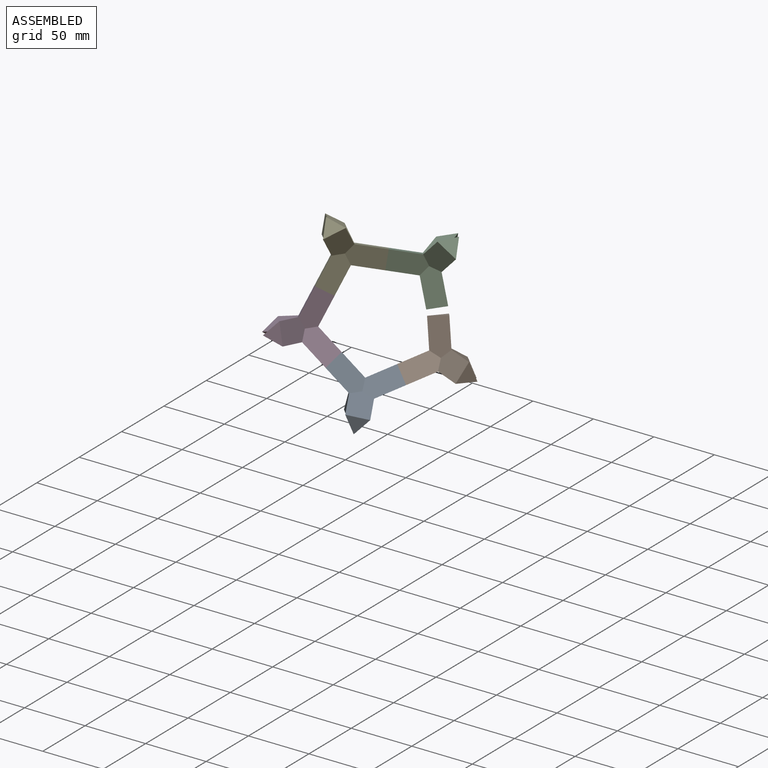
[diagram: assembled view]
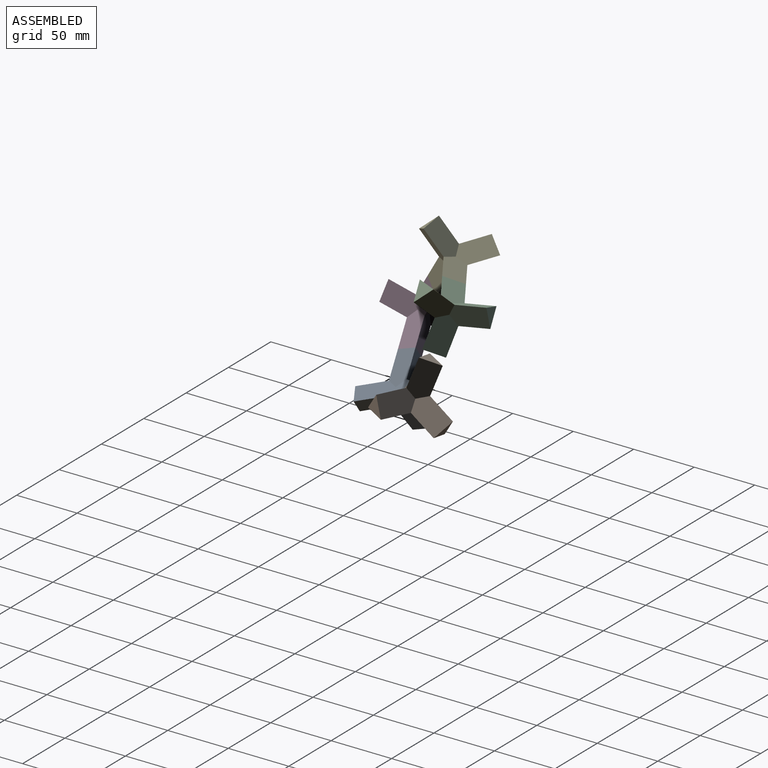
[diagram: assembled view, second angle]
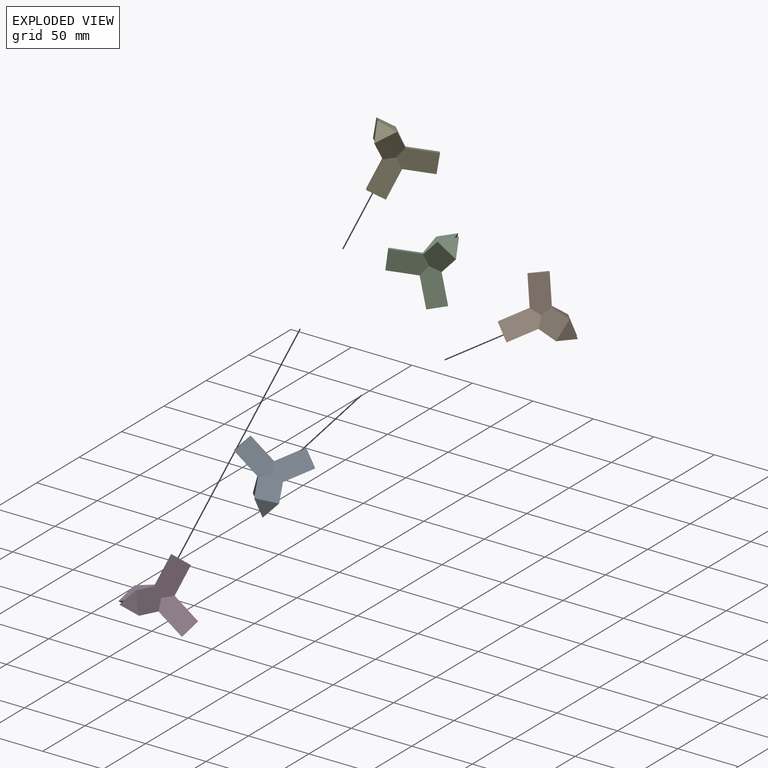
[diagram: exploded view]
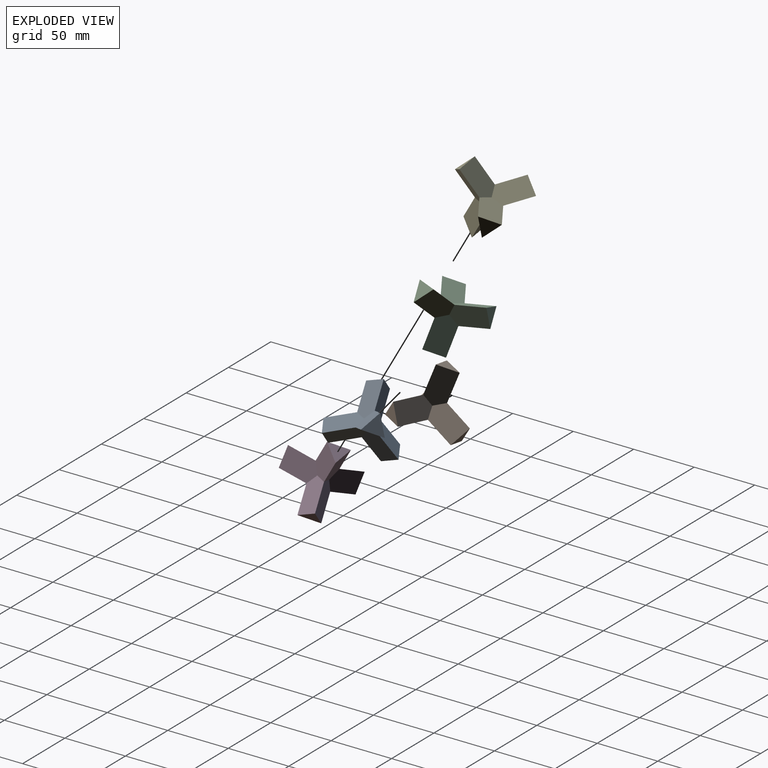
[diagram: exploded view, second angle]
ASSEMBLY  parts=5 mates=8
PART A: 16 faces, bbox 55.7x56.7x45.5 mm
  f0: plane 28.85x16.23mm, normal (-0.35,0.94,0), area 453.8mm2, adj f1,f2,f4,f10,f14
  f1: plane 28.85x17.08mm, normal (0.99,-0.17,0), area 453.8mm2, adj f0,f2,f4,f7,f15
  f2: plane 28.85x13.36mm, normal (-0.64,-0.77,0), area 453.8mm2, adj f0,f1,f4,f5,f9
  f3: plane 16.23x14.14mm, normal (0.33,-0.88,-0.33), area 129.9mm2, adj f5,f6,f7
  f4: plane 17.08x16.23mm, normal (0,0,1), area 129.9mm2, adj f0,f1,f2
  f5: plane 26.31x21.99mm, normal (-0.75,-0.46,0.47), area 453.8mm2, adj f2,f3,f6,f7,f9
  f6: plane 28.51x23.99mm, normal (-0.12,0.31,-0.94), area 453.8mm2, adj f3,f5,f7,f11,f13
  f7: plane 29.34x21.99mm, normal (0.87,0.15,0.47), area 453.8mm2, adj f1,f3,f5,f6,f15
  f8: plane 17.08x14.14mm, normal (-0.93,0.16,-0.33), area 129.9mm2, adj f9,f10,f11
  f9: plane 28.58x21.99mm, normal (-0.31,-0.83,0.47), area 453.8mm2, adj f2,f5,f8,f10,f11
  f10: plane 30.01x21.99mm, normal (-0.02,0.88,0.47), area 453.8mm2, adj f0,f8,f9,f11,f14
  f11: plane 28.26x20.75mm, normal (0.33,-0.06,-0.94), area 453.8mm2, adj f6,f8,f9,f10,f13
  f12: plane 14.14x13.36mm, normal (0.6,0.73,-0.33), area 129.9mm2, adj f13,f14,f15
  f13: plane 28.15x27.49mm, normal (-0.21,-0.26,-0.94), area 453.8mm2, adj f6,f11,f12,f14,f15
  f14: plane 23.99x21.99mm, normal (-0.56,0.68,0.47), area 453.8mm2, adj f0,f10,f12,f13,f15
  f15: plane 26.49x21.99mm, normal (0.77,-0.42,0.47), area 453.8mm2, adj f1,f7,f12,f13,f14
PART B: same geometry as A
PART C: same geometry as A
PART D: same geometry as A
PART E: same geometry as A
PLACE A rot(axis=(-0.45,0.81,0.36),74.9deg) t=(-55.72,-87.08,-89.96)mm
PLACE B rot(axis=(-0.04,-0.3,-0.95),76.6deg) t=(-15.04,-46.93,-67.98)mm
PLACE C rot(axis=(0.27,0.96,-0.04),156.7deg) t=(-35.69,-32.07,-6.36)mm
PLACE D rot(axis=(-0.86,0.15,-0.48),40.2deg) t=(-98.71,-97.8,-47.69)mm
PLACE E rot(axis=(0.94,-0.33,0),145deg) t=(-86.7,-64.79,2.47)mm
MATE revolute B.f3 <-> A.f4  axis (-0.66,-0.66,-0.36) through (-35.38,-67.01,-78.97)mm
MATE parallel B.f7 <-> A.f2  axis (0.22,-0.63,0.75) through (-25.55,-61.54,-70.52)mm
MATE revolute E.f4 <-> D.f4  axis (-0.2,-0.54,-0.82) through (-92.7,-81.3,-22.61)mm
MATE parallel A.f11 <-> D.f13  axis (-0.46,-0.63,-0.62) through (-70.27,-93.31,-81.02)mm
MATE revolute C.f3 <-> E.f3  axis (-0.83,-0.53,0.14) through (-61.2,-48.43,-1.94)mm
MATE revolute A.f8 <-> D.f12  axis (-0.7,-0.18,0.69) through (-77.21,-92.44,-68.83)mm
MATE parallel C.f5 <-> E.f7  axis (0.52,-0.84,-0.14) through (-47.67,-45.63,-4.56)mm
MATE parallel E.f2 <-> D.f0  axis (-0.07,0.84,-0.54) through (-90.46,-70.01,-14.53)mm
